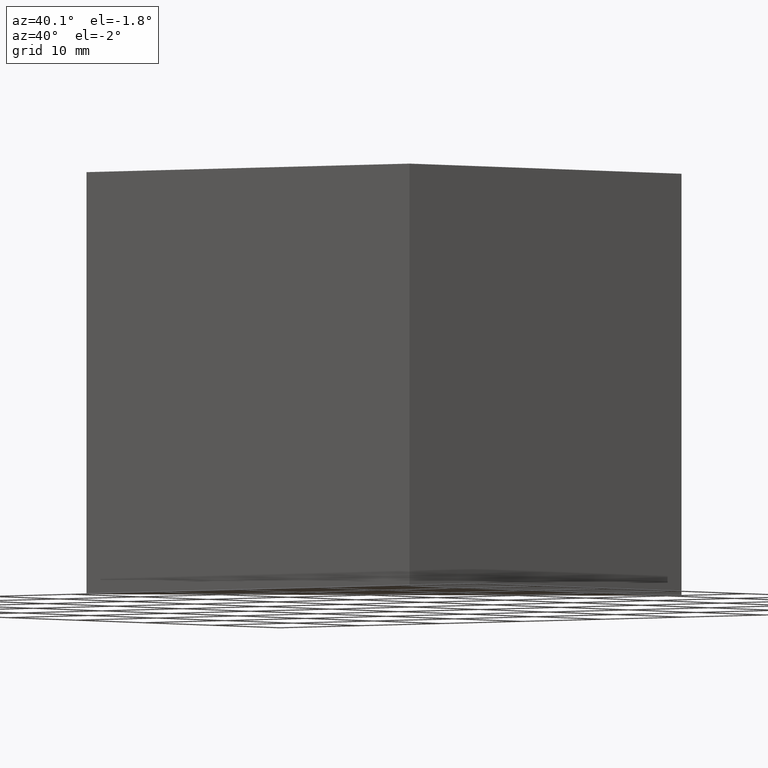
[diagram: clean part render]
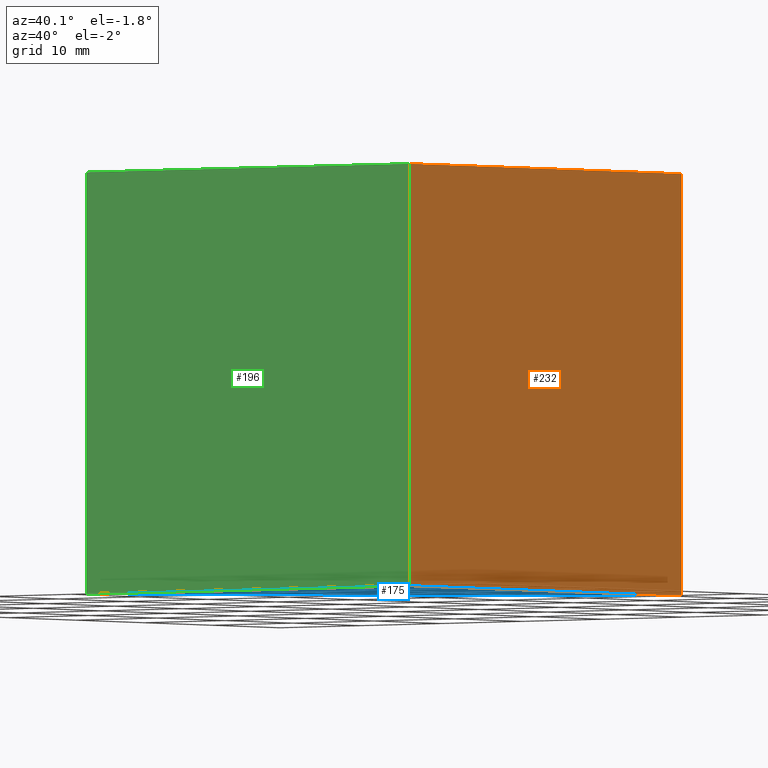
[diagram: same view with three faces highlighted in distinct colors, each labeled with its STEP entity id]
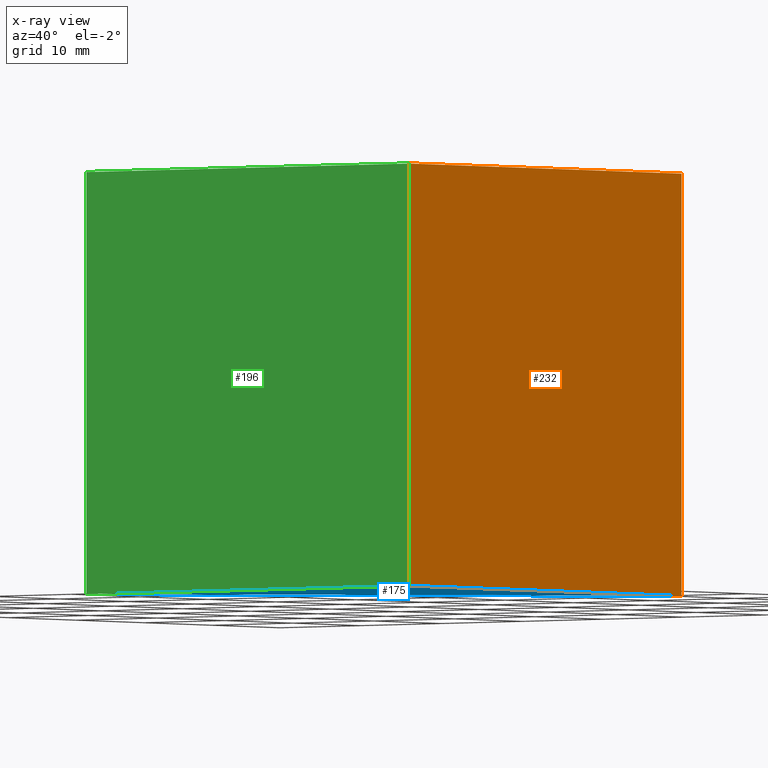
[diagram: x-ray of the same camera — body ghosted, the three highlighted faces saturated]
A machine part, auxiliary view with three faces highlighted in distinct colors.
The next image is the same camera in x-ray (body ghosted, the three faces saturated) — at least one of them is partly hidden behind the body in this view.
Their STEP definitions:

[orange] entity #232 — the highlighted planar face has unit normal (-1, 0, 0).
#12 = VECTOR ( 'NONE', #110, 1000.000000000000000 ) ;
#15 = CARTESIAN_POINT ( 'NONE',  ( 139.7712509687245900, 146.2232561922448300, 0.0000000000000000000 ) ) ;
#18 = ORIENTED_EDGE ( 'NONE', *, *, #263, .F. ) ;
#19 = CARTESIAN_POINT ( 'NONE',  ( 139.7712509687245900, 106.2232561922448300, 0.0000000000000000000 ) ) ;
#41 = LINE ( 'NONE', #220, #266 ) ;
#43 = CARTESIAN_POINT ( 'NONE',  ( 139.7712509687245900, 106.2232561922448300, 40.00000000000000000 ) ) ;
#46 = EDGE_CURVE ( 'NONE', #194, #269, #41, .T. ) ;
#58 = EDGE_CURVE ( 'NONE', #92, #106, #253, .T. ) ;
#63 = DIRECTION ( 'NONE',  ( -1.000000000000000000, 0.0000000000000000000, 0.0000000000000000000 ) ) ;
#69 = EDGE_LOOP ( 'NONE', ( #207, #18, #151, #127 ) ) ;
#78 = FACE_OUTER_BOUND ( 'NONE', #69, .T. ) ;
#80 = CARTESIAN_POINT ( 'NONE',  ( 139.7712509687245900, 106.2232561922448300, 0.0000000000000000000 ) ) ;
#81 = DIRECTION ( 'NONE',  ( 0.0000000000000000000, 1.000000000000000000, 0.0000000000000000000 ) ) ;
#84 = EDGE_CURVE ( 'NONE', #194, #92, #146, .T. ) ;
#88 = CARTESIAN_POINT ( 'NONE',  ( 139.7712509687245900, 146.2232561922448300, 40.00000000000000000 ) ) ;
#92 = VERTEX_POINT ( 'NONE', #19 ) ;
#106 = VERTEX_POINT ( 'NONE', #15 ) ;
#110 = DIRECTION ( 'NONE',  ( -0.0000000000000000000, -0.0000000000000000000, -1.000000000000000000 ) ) ;
#112 = DIRECTION ( 'NONE',  ( 0.0000000000000000000, 0.0000000000000000000, 1.000000000000000000 ) ) ;
#114 = CARTESIAN_POINT ( 'NONE',  ( 139.7712509687245900, 106.2232561922448300, 40.00000000000000000 ) ) ;
#121 = VECTOR ( 'NONE', #252, 1000.000000000000000 ) ;
#127 = ORIENTED_EDGE ( 'NONE', *, *, #84, .T. ) ;
#137 = LINE ( 'NONE', #88, #12 ) ;
#146 = LINE ( 'NONE', #170, #250 ) ;
#151 = ORIENTED_EDGE ( 'NONE', *, *, #46, .F. ) ;
#155 = PLANE ( 'NONE',  #163 ) ;
#163 = AXIS2_PLACEMENT_3D ( 'NONE', #43, #63, #112 ) ;
#170 = CARTESIAN_POINT ( 'NONE',  ( 139.7712509687245900, 106.2232561922448300, 40.00000000000000000 ) ) ;
#194 = VERTEX_POINT ( 'NONE', #114 ) ;
#207 = ORIENTED_EDGE ( 'NONE', *, *, #58, .T. ) ;
#220 = CARTESIAN_POINT ( 'NONE',  ( 139.7712509687245900, 106.2232561922448300, 40.00000000000000000 ) ) ;
#232 = ADVANCED_FACE ( 'NONE', ( #78 ), #155, .F. ) ;
#235 = DIRECTION ( 'NONE',  ( -0.0000000000000000000, -0.0000000000000000000, -1.000000000000000000 ) ) ;
#250 = VECTOR ( 'NONE', #235, 1000.000000000000000 ) ;
#252 = DIRECTION ( 'NONE',  ( 0.0000000000000000000, 1.000000000000000000, 0.0000000000000000000 ) ) ;
#253 = LINE ( 'NONE', #80, #121 ) ;
#263 = EDGE_CURVE ( 'NONE', #269, #106, #137, .T. ) ;
#266 = VECTOR ( 'NONE', #81, 1000.000000000000000 ) ;
#269 = VERTEX_POINT ( 'NONE', #282 ) ;
#282 = CARTESIAN_POINT ( 'NONE',  ( 139.7712509687245900, 146.2232561922448300, 40.00000000000000000 ) ) ;

[blue] entity #175 — the highlighted planar face has unit normal (0, 0, -1).
#6 = VECTOR ( 'NONE', #195, 1000.000000000000100 ) ;
#13 = CARTESIAN_POINT ( 'NONE',  ( 99.77125096872458700, 106.2232561922448300, 0.0000000000000000000 ) ) ;
#15 = CARTESIAN_POINT ( 'NONE',  ( 139.7712509687245900, 146.2232561922448300, 0.0000000000000000000 ) ) ;
#19 = CARTESIAN_POINT ( 'NONE',  ( 139.7712509687245900, 106.2232561922448300, 0.0000000000000000000 ) ) ;
#22 = ORIENTED_EDGE ( 'NONE', *, *, #107, .F. ) ;
#24 = EDGE_LOOP ( 'NONE', ( #34, #22, #238 ) ) ;
#31 = VECTOR ( 'NONE', #93, 1000.000000000000000 ) ;
#34 = ORIENTED_EDGE ( 'NONE', *, *, #211, .F. ) ;
#58 = EDGE_CURVE ( 'NONE', #92, #106, #253, .T. ) ;
#80 = CARTESIAN_POINT ( 'NONE',  ( 139.7712509687245900, 106.2232561922448300, 0.0000000000000000000 ) ) ;
#92 = VERTEX_POINT ( 'NONE', #19 ) ;
#93 = DIRECTION ( 'NONE',  ( 1.000000000000000000, -0.0000000000000000000, -0.0000000000000000000 ) ) ;
#97 = LINE ( 'NONE', #158, #31 ) ;
#106 = VERTEX_POINT ( 'NONE', #15 ) ;
#107 = EDGE_CURVE ( 'NONE', #106, #210, #280, .T. ) ;
#121 = VECTOR ( 'NONE', #252, 1000.000000000000000 ) ;
#138 = PLANE ( 'NONE',  #181 ) ;
#158 = CARTESIAN_POINT ( 'NONE',  ( 139.7712509687245900, 106.2232561922448300, 0.0000000000000000000 ) ) ;
#175 = ADVANCED_FACE ( 'NONE', ( #257 ), #138, .T. ) ;
#181 = AXIS2_PLACEMENT_3D ( 'NONE', #205, #240, #201 ) ;
#195 = DIRECTION ( 'NONE',  ( -0.7071067811865474600, -0.7071067811865474600, -0.0000000000000000000 ) ) ;
#201 = DIRECTION ( 'NONE',  ( -1.000000000000000000, 0.0000000000000000000, -0.0000000000000000000 ) ) ;
#203 = CARTESIAN_POINT ( 'NONE',  ( 99.77125096872458700, 106.2232561922448300, 0.0000000000000000000 ) ) ;
#205 = CARTESIAN_POINT ( 'NONE',  ( 0.0000000000000000000, 0.0000000000000000000, 0.0000000000000000000 ) ) ;
#210 = VERTEX_POINT ( 'NONE', #203 ) ;
#211 = EDGE_CURVE ( 'NONE', #210, #92, #97, .T. ) ;
#238 = ORIENTED_EDGE ( 'NONE', *, *, #58, .F. ) ;
#240 = DIRECTION ( 'NONE',  ( 0.0000000000000000000, 0.0000000000000000000, -1.000000000000000000 ) ) ;
#252 = DIRECTION ( 'NONE',  ( 0.0000000000000000000, 1.000000000000000000, 0.0000000000000000000 ) ) ;
#253 = LINE ( 'NONE', #80, #121 ) ;
#257 = FACE_OUTER_BOUND ( 'NONE', #24, .T. ) ;
#280 = LINE ( 'NONE', #13, #6 ) ;

[green] entity #196 — the highlighted planar face has unit normal (0, 1, -0).
#17 = DIRECTION ( 'NONE',  ( -0.0000000000000000000, -0.0000000000000000000, -1.000000000000000000 ) ) ;
#19 = CARTESIAN_POINT ( 'NONE',  ( 139.7712509687245900, 106.2232561922448300, 0.0000000000000000000 ) ) ;
#31 = VECTOR ( 'NONE', #93, 1000.000000000000000 ) ;
#37 = VECTOR ( 'NONE', #17, 1000.000000000000000 ) ;
#42 = CARTESIAN_POINT ( 'NONE',  ( 99.77125096872458700, 106.2232561922448300, 40.00000000000000000 ) ) ;
#62 = DIRECTION ( 'NONE',  ( 0.0000000000000000000, 0.0000000000000000000, 1.000000000000000000 ) ) ;
#72 = EDGE_CURVE ( 'NONE', #165, #194, #218, .T. ) ;
#82 = CARTESIAN_POINT ( 'NONE',  ( 99.77125096872458700, 106.2232561922448300, 40.00000000000000000 ) ) ;
#84 = EDGE_CURVE ( 'NONE', #194, #92, #146, .T. ) ;
#92 = VERTEX_POINT ( 'NONE', #19 ) ;
#93 = DIRECTION ( 'NONE',  ( 1.000000000000000000, -0.0000000000000000000, -0.0000000000000000000 ) ) ;
#97 = LINE ( 'NONE', #158, #31 ) ;
#104 = EDGE_LOOP ( 'NONE', ( #198, #153, #246, #186 ) ) ;
#114 = CARTESIAN_POINT ( 'NONE',  ( 139.7712509687245900, 106.2232561922448300, 40.00000000000000000 ) ) ;
#115 = CARTESIAN_POINT ( 'NONE',  ( 139.7712509687245900, 106.2232561922448300, 40.00000000000000000 ) ) ;
#122 = EDGE_CURVE ( 'NONE', #165, #210, #140, .T. ) ;
#128 = AXIS2_PLACEMENT_3D ( 'NONE', #115, #180, #62 ) ;
#140 = LINE ( 'NONE', #82, #37 ) ;
#145 = FACE_OUTER_BOUND ( 'NONE', #104, .T. ) ;
#146 = LINE ( 'NONE', #170, #250 ) ;
#153 = ORIENTED_EDGE ( 'NONE', *, *, #84, .F. ) ;
#158 = CARTESIAN_POINT ( 'NONE',  ( 139.7712509687245900, 106.2232561922448300, 0.0000000000000000000 ) ) ;
#165 = VERTEX_POINT ( 'NONE', #42 ) ;
#170 = CARTESIAN_POINT ( 'NONE',  ( 139.7712509687245900, 106.2232561922448300, 40.00000000000000000 ) ) ;
#176 = PLANE ( 'NONE',  #128 ) ;
#180 = DIRECTION ( 'NONE',  ( 0.0000000000000000000, 1.000000000000000000, -0.0000000000000000000 ) ) ;
#186 = ORIENTED_EDGE ( 'NONE', *, *, #122, .T. ) ;
#194 = VERTEX_POINT ( 'NONE', #114 ) ;
#196 = ADVANCED_FACE ( 'NONE', ( #145 ), #176, .F. ) ;
#198 = ORIENTED_EDGE ( 'NONE', *, *, #211, .T. ) ;
#199 = DIRECTION ( 'NONE',  ( 1.000000000000000000, -0.0000000000000000000, -0.0000000000000000000 ) ) ;
#203 = CARTESIAN_POINT ( 'NONE',  ( 99.77125096872458700, 106.2232561922448300, 0.0000000000000000000 ) ) ;
#210 = VERTEX_POINT ( 'NONE', #203 ) ;
#211 = EDGE_CURVE ( 'NONE', #210, #92, #97, .T. ) ;
#216 = VECTOR ( 'NONE', #199, 1000.000000000000000 ) ;
#218 = LINE ( 'NONE', #278, #216 ) ;
#235 = DIRECTION ( 'NONE',  ( -0.0000000000000000000, -0.0000000000000000000, -1.000000000000000000 ) ) ;
#246 = ORIENTED_EDGE ( 'NONE', *, *, #72, .F. ) ;
#250 = VECTOR ( 'NONE', #235, 1000.000000000000000 ) ;
#278 = CARTESIAN_POINT ( 'NONE',  ( 139.7712509687245900, 106.2232561922448300, 40.00000000000000000 ) ) ;